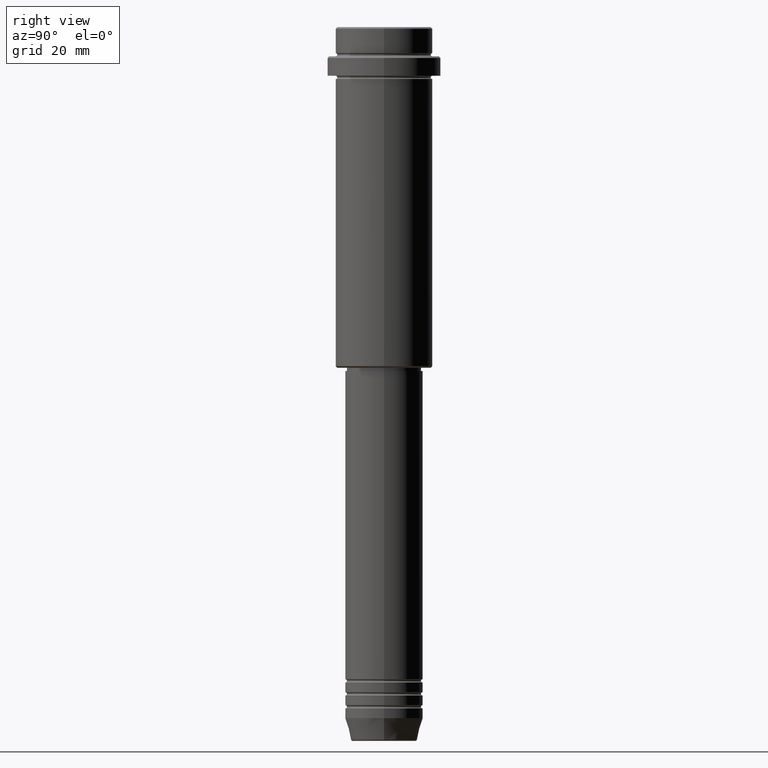
[diagram: clean part render]
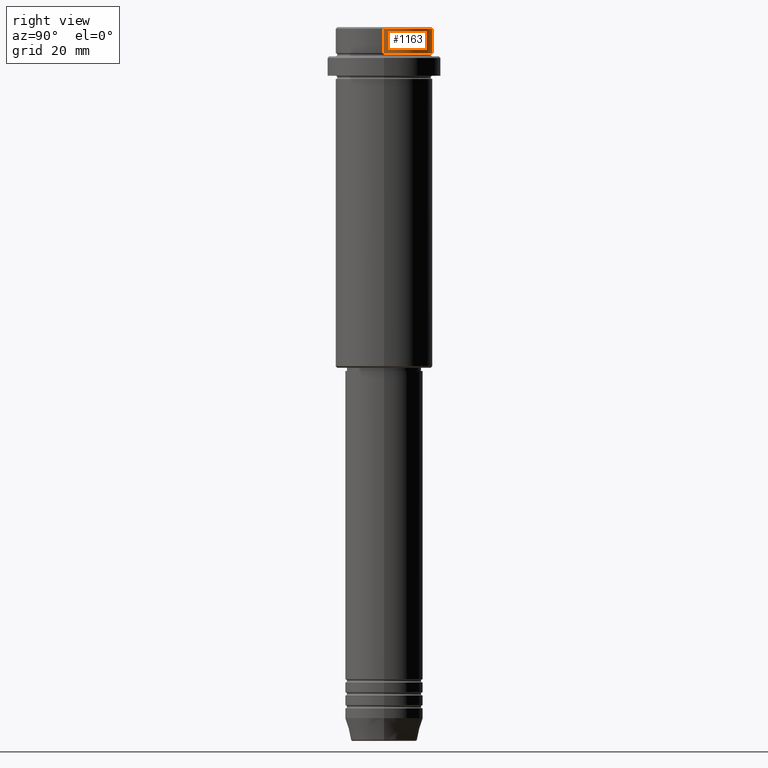
[diagram: same view with one face highlighted and labeled with its STEP entity id]
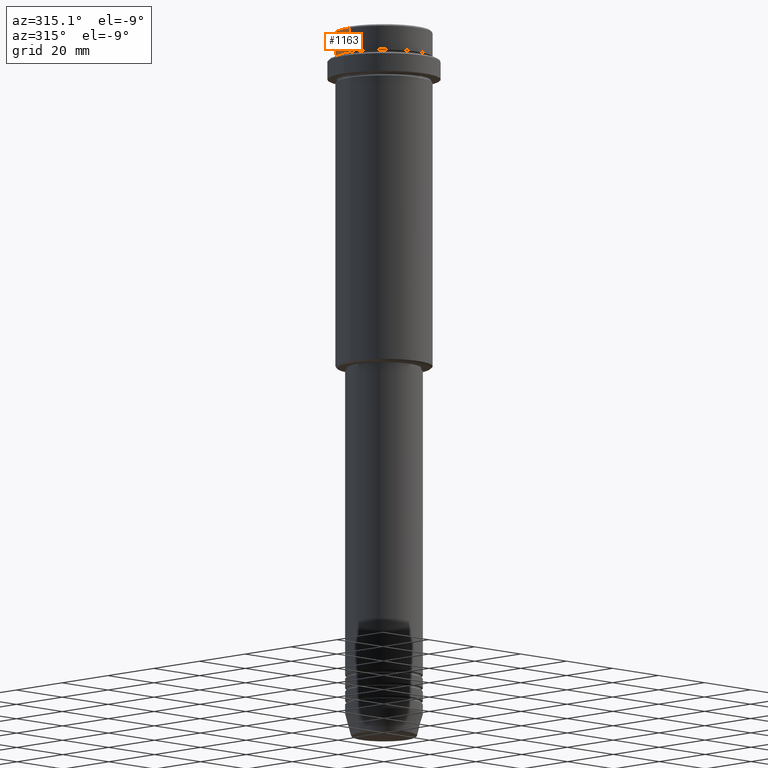
[diagram: same view with one face highlighted and labeled with its STEP entity id]
A machine part, right view. The second image highlights one B-rep face of the part: STEP entity #1163.
A second angle (auxiliary view) of the same face is appended — the face is thin or edge-on in the first view.
In plain terms, the highlighted cylindrical surface (partial cylindrical patch) has radius 15 mm, axis along (-0, -0, 1).
Its self-contained STEP definition (entity closure, byte-faithful):
#21 = VECTOR ( 'NONE', #689, 1000.000000000000000 ) ;
#50 = DIRECTION ( 'NONE',  ( 1.000000000000000000, 0.000000000000000000, 0.000000000000000000 ) ) ;
#55 = CARTESIAN_POINT ( 'NONE',  ( 0.000000000000000000, 0.000000000000000000, -0.5000000000000108802 ) ) ;
#75 = FACE_OUTER_BOUND ( 'NONE', #257, .T. ) ;
#92 = EDGE_CURVE ( 'NONE', #240, #659, #898, .T. ) ;
#153 = AXIS2_PLACEMENT_3D ( 'NONE', #55, #688, #50 ) ;
#157 = ORIENTED_EDGE ( 'NONE', *, *, #404, .T. ) ;
#192 = DIRECTION ( 'NONE',  ( -0.000000000000000000, -0.000000000000000000, 1.000000000000000000 ) ) ;
#199 = DIRECTION ( 'NONE',  ( 1.000000000000000000, 0.000000000000000000, 0.000000000000000000 ) ) ;
#240 = VERTEX_POINT ( 'NONE', #1294 ) ;
#257 = EDGE_LOOP ( 'NONE', ( #468, #799, #157, #1110 ) ) ;
#270 = VERTEX_POINT ( 'NONE', #919 ) ;
#284 = LINE ( 'NONE', #1139, #21 ) ;
#351 = EDGE_CURVE ( 'NONE', #659, #270, #401, .T. ) ;
#376 = CARTESIAN_POINT ( 'NONE',  ( 15.00000000000000000, 0.000000000000000000, -0.5000000000000108802 ) ) ;
#391 = CARTESIAN_POINT ( 'NONE',  ( 0.000000000000000000, 0.000000000000000000, 0.000000000000000000 ) ) ;
#401 = LINE ( 'NONE', #1171, #899 ) ;
#404 = EDGE_CURVE ( 'NONE', #270, #667, #1017, .T. ) ;
#468 = ORIENTED_EDGE ( 'NONE', *, *, #92, .T. ) ;
#487 = CARTESIAN_POINT ( 'NONE',  ( -15.00000000000000000, 1.836970198721029589E-15, -7.999999999999998224 ) ) ;
#659 = VERTEX_POINT ( 'NONE', #487 ) ;
#667 = VERTEX_POINT ( 'NONE', #376 ) ;
#688 = DIRECTION ( 'NONE',  ( 0.000000000000000000, 0.000000000000000000, -1.000000000000000000 ) ) ;
#689 = DIRECTION ( 'NONE',  ( -0.000000000000000000, -0.000000000000000000, 1.000000000000000000 ) ) ;
#724 = CARTESIAN_POINT ( 'NONE',  ( 0.000000000000000000, 0.000000000000000000, -7.999999999999998224 ) ) ;
#799 = ORIENTED_EDGE ( 'NONE', *, *, #351, .T. ) ;
#833 = DIRECTION ( 'NONE',  ( -0.000000000000000000, -0.000000000000000000, 1.000000000000000000 ) ) ;
#898 = CIRCLE ( 'NONE', #1078, 15.00000000000000000 ) ;
#899 = VECTOR ( 'NONE', #192, 1000.000000000000000 ) ;
#919 = CARTESIAN_POINT ( 'NONE',  ( -15.00000000000000000, 1.836970198721029589E-15, -0.5000000000000108802 ) ) ;
#936 = DIRECTION ( 'NONE',  ( 1.000000000000000000, 0.000000000000000000, 0.000000000000000000 ) ) ;
#941 = CYLINDRICAL_SURFACE ( 'NONE', #1136, 15.00000000000000000 ) ;
#1017 = CIRCLE ( 'NONE', #153, 15.00000000000000000 ) ;
#1078 = AXIS2_PLACEMENT_3D ( 'NONE', #724, #833, #199 ) ;
#1110 = ORIENTED_EDGE ( 'NONE', *, *, #1412, .F. ) ;
#1136 = AXIS2_PLACEMENT_3D ( 'NONE', #391, #1377, #936 ) ;
#1139 = CARTESIAN_POINT ( 'NONE',  ( 15.00000000000000000, 0.000000000000000000, 0.000000000000000000 ) ) ;
#1163 = ADVANCED_FACE ( 'NONE', ( #75 ), #941, .T. ) ;
#1171 = CARTESIAN_POINT ( 'NONE',  ( -15.00000000000000000, 1.836970198721029589E-15, 0.000000000000000000 ) ) ;
#1294 = CARTESIAN_POINT ( 'NONE',  ( 15.00000000000000000, 0.000000000000000000, -7.999999999999998224 ) ) ;
#1377 = DIRECTION ( 'NONE',  ( -0.000000000000000000, -0.000000000000000000, 1.000000000000000000 ) ) ;
#1412 = EDGE_CURVE ( 'NONE', #240, #667, #284, .T. ) ;